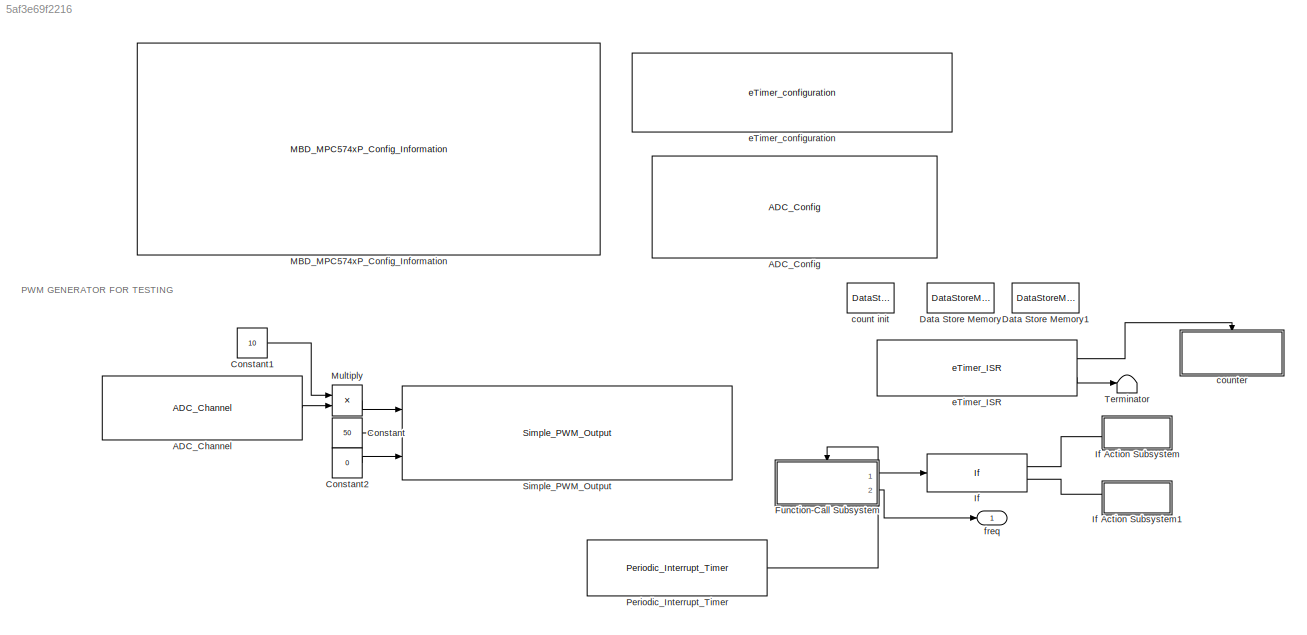
MODEL slx_5af3e69f2216
KIND model
CONFIG AbsTol = auto
CONFIG EnableMultiTasking = off
CONFIG FixedStep = 1e-4
CONFIG InitFcn = mbd_pnt_consistency_checks(bdroot(gcs));
CONFIG MaxStep = auto
CONFIG MinStep = auto
CONFIG RelTol = 1e-3
CONFIG SampleTimeConstraint = Unconstrained
CONFIG Solver = FixedStepDiscrete
CONFIG SolverName = FixedStepDiscrete
CONFIG StartTime = 0.0
CONFIG StopTime = 10.0
BLOCK [Reference] ADC_Channel  REF=mbd_pnt_ec_toolbox/MPC574xP/Motor Control Blocks/ADC_Channel
  Ports = [0, 1]
  SourceBlock = mbd_pnt_ec_toolbox/MPC574xP/Motor Control Blocks/ADC_Channel
  SourceProductName = Model Based Design Toolbox for MPC574xP
  SourceType = adc_pnt_channel_block
BLOCK [Reference] ADC_Config  REF=mbd_pnt_ec_toolbox/MPC574xP/Motor Control Blocks/ADC_Config
  Ports = []
  SourceBlock = mbd_pnt_ec_toolbox/MPC574xP/Motor Control Blocks/ADC_Config
  SourceProductName = Model Based Design Toolbox for MPC574xP
  SourceType = adc_pnt_config_block
BLOCK [Constant] Constant
  OutDataTypeStr = uint32
  Value = 50
BLOCK [Constant] Constant1
  OutDataTypeStr = uint16
  Value = 10
BLOCK [Constant] Constant2
  OutDataTypeStr = uint32
  Value = 0
BLOCK [DataStoreMemory] Data Store Memory
  DataStoreName = counterprev
  OutDataTypeStr = double
  ReadBeforeWriteMsg = warning
  ShowAdditionalParam = off
  WriteAfterReadMsg = warning
  WriteAfterWriteMsg = warning
BLOCK [DataStoreMemory] Data Store Memory1
  DataStoreName = counternext
  OutDataTypeStr = double
  ReadBeforeWriteMsg = warning
  ShowAdditionalParam = off
  WriteAfterReadMsg = warning
  WriteAfterWriteMsg = warning
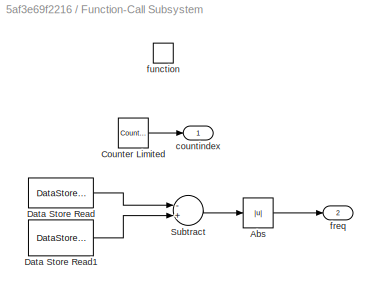
BLOCK [SubSystem] Function-Call Subsystem
  Ports = [0, 2, 0, 1]
  RequestExecContextInheritance = off
  TreatAsAtomicUnit = on
BLOCK [Abs] Function-Call Subsystem/Abs
  SaturateOnIntegerOverflow = off
BLOCK [Reference] Function-Call Subsystem/Counter Limited  REF=simulink/Sources/Counter
Limited
  Ports = [0, 1]
  SourceBlock = simulink/Sources/Counter\nLimited
  SourceProductBaseCode = SL
  SourceProductName = Simulink
  SourceType = Counter Limited
BLOCK [DataStoreRead] Function-Call Subsystem/Data Store Read
  DataStoreName = counterprev
  Ports = [0, 1]
BLOCK [DataStoreRead] Function-Call Subsystem/Data Store Read1
  DataStoreName = counternext
  Ports = [0, 1]
BLOCK [Sum] Function-Call Subsystem/Subtract
  InputSameDT = off
  Inputs = -+
  OutDataTypeStr = Inherit: Inherit via internal rule
  Ports = [2, 1]
  SaturateOnIntegerOverflow = off
BLOCK [Outport] Function-Call Subsystem/countindex
  IconDisplay = Port number
BLOCK [Outport] Function-Call Subsystem/freq
  IconDisplay = Port number
  Port = 2
BLOCK [TriggerPort] Function-Call Subsystem/function
  Ports = []
  StatesWhenEnabling = held
  TriggerType = function-call
  VariantControl = Variant
BLOCK [If] If
  IfExpression = u1 == 0
  Ports = [1, 2]
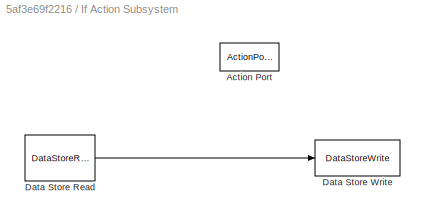
BLOCK [SubSystem] If Action Subsystem
  Ports = [0, 0, 0, 0, 0, 0, 0, 1]
  RequestExecContextInheritance = off
  TreatAsAtomicUnit = on
BLOCK [ActionPort] If Action Subsystem/Action Port
  ActionType = then
BLOCK [DataStoreRead] If Action Subsystem/Data Store Read
  DataStoreName = countedge
  Ports = [0, 1]
BLOCK [DataStoreWrite] If Action Subsystem/Data Store Write
  DataStoreName = counterprev
  Ports = [1]
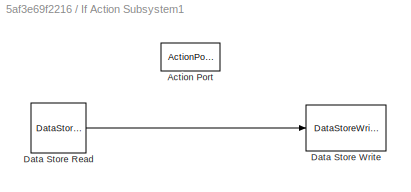
BLOCK [SubSystem] If Action Subsystem1
  Ports = [0, 0, 0, 0, 0, 0, 0, 1]
  RequestExecContextInheritance = off
  TreatAsAtomicUnit = on
BLOCK [ActionPort] If Action Subsystem1/Action Port
  ActionType = else
BLOCK [DataStoreRead] If Action Subsystem1/Data Store Read
  DataStoreName = countedge
  Ports = [0, 1]
BLOCK [DataStoreWrite] If Action Subsystem1/Data Store Write
  DataStoreName = counternext
  Ports = [1]
BLOCK [Reference] MBD_MPC574xP_Config_Information  REF=mbd_pnt_ec_toolbox/MPC574xP/MBD_MPC574xP_Config_Information
  Ports = []
  SourceBlock = mbd_pnt_ec_toolbox/MPC574xP/MBD_MPC574xP_Config_Information
  SourceProductName = Model Based Design Toolbox for MPC574xP
  SourceType = MBDTBX_EC_PNT
BLOCK [Product] Multiply
  InputSameDT = off
  OutDataTypeStr = uint32
  Ports = [2, 1]
  RndMeth = Floor
  SaturateOnIntegerOverflow = off
BLOCK [Reference] Periodic_Interrupt_Timer  REF=mbd_pnt_ec_toolbox/MPC574xP/Utility Blocks/Periodic_Interrupt_Timer
  Ports = [0, 1]
  SourceBlock = mbd_pnt_ec_toolbox/MPC574xP/Utility Blocks/Periodic_Interrupt_Timer
  SourceProductName = Model Based Design Toolbox for MPC574xP
  SourceType = timer_pnt_pit_block
BLOCK [Reference] Simple_PWM_Output  REF=mbd_pnt_ec_toolbox/MPC574xP/Motor Control Blocks/Simple_PWM_Output
  Ports = [3]
  SourceBlock = mbd_pnt_ec_toolbox/MPC574xP/Motor Control Blocks/Simple_PWM_Output
  SourceProductName = Model Based Design Toolbox for MPC574xP
  SourceType = Simple_PWM_pnt_output
BLOCK [Terminator] Terminator
BLOCK [DataStoreMemory] count init
  DataStoreName = countedge
  OutDataTypeStr = double
  ReadBeforeWriteMsg = warning
  ShowAdditionalParam = off
  WriteAfterReadMsg = warning
  WriteAfterWriteMsg = warning
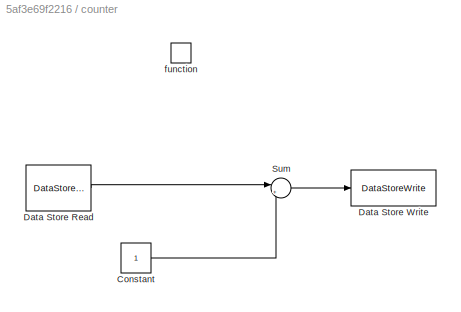
BLOCK [SubSystem] counter
  Ports = [0, 0, 0, 1]
  RequestExecContextInheritance = off
  TreatAsAtomicUnit = on
BLOCK [Constant] counter/Constant
  OutDataTypeStr = double
BLOCK [DataStoreRead] counter/Data Store Read
  DataStoreName = countedge
  Ports = [0, 1]
BLOCK [DataStoreWrite] counter/Data Store Write
  DataStoreName = countedge
  Ports = [1]
BLOCK [Sum] counter/Sum
  IconShape = round
  InputSameDT = off
  Inputs = |++
  OutDataTypeStr = Inherit: Inherit via internal rule
  Ports = [2, 1]
  SaturateOnIntegerOverflow = off
BLOCK [TriggerPort] counter/function
  Ports = []
  StatesWhenEnabling = held
  TriggerType = function-call
  VariantControl = Variant
BLOCK [Reference] eTimer_ISR  REF=mbd_pnt_ec_toolbox/MPC574xP/Motor Control Blocks/eTimer_ISR
  Ports = [0, 2]
  SourceBlock = mbd_pnt_ec_toolbox/MPC574xP/Motor Control Blocks/eTimer_ISR
  SourceProductName = Model Based Design Toolbox for MPC574xP
  SourceType = eTimer_pnt_interrupt
BLOCK [Reference] eTimer_configuration  REF=mbd_pnt_ec_toolbox/MPC574xP/Motor Control Blocks/eTimer_configuration
  Ports = []
  SourceBlock = mbd_pnt_ec_toolbox/MPC574xP/Motor Control Blocks/eTimer_configuration
  SourceProductName = Model Based Design Toolbox for MPC574xP
  SourceType = eTimer_pnt_config
BLOCK [Outport] freq
  IconDisplay = Port number
ANNOTATION (root): PWM GENERATOR FOR TESTING
LINE ADC_Channel:1 -> Multiply:2
LINE Constant1:1 -> Multiply:1
LINE Constant2:1 -> Simple_PWM_Output:3
LINE Constant:1 -> Simple_PWM_Output:2
LINE Function-Call Subsystem/Abs:1 -> Function-Call Subsystem/freq:1
LINE Function-Call Subsystem/Counter Limited:1 -> Function-Call Subsystem/countindex:1
LINE Function-Call Subsystem/Data Store Read1:1 -> Function-Call Subsystem/Subtract:2
LINE Function-Call Subsystem/Data Store Read:1 -> Function-Call Subsystem/Subtract:1
LINE Function-Call Subsystem/Subtract:1 -> Function-Call Subsystem/Abs:1
LINE Function-Call Subsystem:1 -> If:1
LINE Function-Call Subsystem:2 -> freq:1
LINE If Action Subsystem/Data Store Read:1 -> If Action Subsystem/Data Store Write:1
LINE If Action Subsystem1/Data Store Read:1 -> If Action Subsystem1/Data Store Write:1
LINE If:1 -> If Action Subsystem:ifaction
LINE If:2 -> If Action Subsystem1:ifaction
LINE Multiply:1 -> Simple_PWM_Output:1
LINE Periodic_Interrupt_Timer:1 -> Function-Call Subsystem:trigger
LINE counter/Constant:1 -> counter/Sum:2
LINE counter/Data Store Read:1 -> counter/Sum:1
LINE counter/Sum:1 -> counter/Data Store Write:1
LINE eTimer_ISR:1 -> counter:trigger
LINE eTimer_ISR:2 -> Terminator:1
